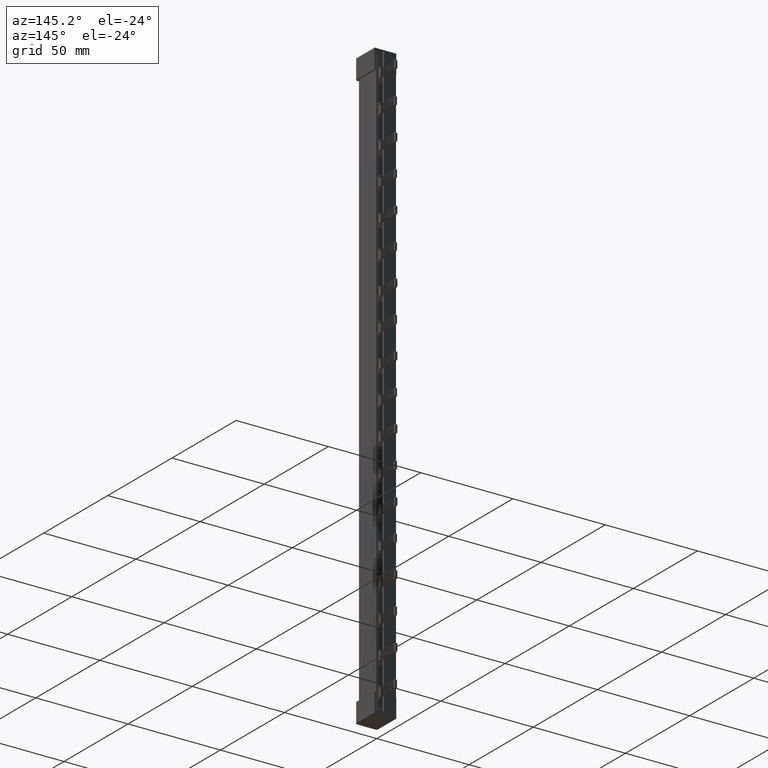
[diagram: clean part render]
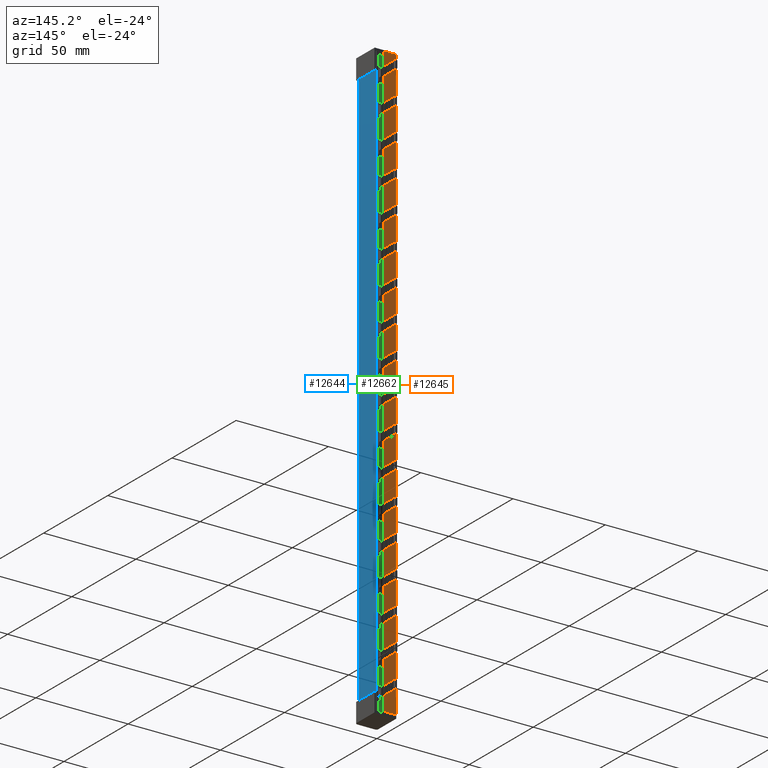
[diagram: same view with three faces highlighted in distinct colors, each labeled with its STEP entity id]
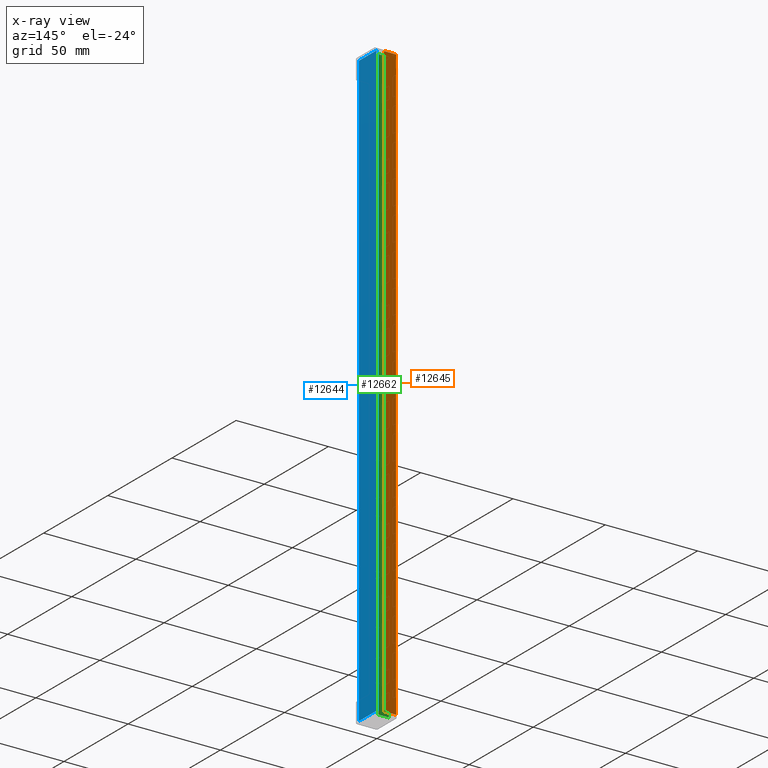
[diagram: x-ray of the same camera — body ghosted, the three highlighted faces saturated]
A machine part, auxiliary view with three faces highlighted in distinct colors.
The next image is the same camera in x-ray (body ghosted, the three faces saturated) — at least one of them is partly hidden behind the body in this view.
Their STEP definitions:

[orange] entity #12645 — the highlighted planar face has unit normal (0, -1, 0).
#1482 = DIRECTION ( 'NONE',  ( -0.0000000000000000000, 0.0000000000000000000, 1.000000000000000000 ) ) ;
#1532 = CARTESIAN_POINT ( 'NONE',  ( 6.499999999999950300, 14.99999999999998600, 220.2000000000000500 ) ) ;
#1574 = LINE ( 'NONE', #1532, #17274 ) ;
#1584 = CARTESIAN_POINT ( 'NONE',  ( 6.499999999999950300, 14.99999999999998600, -103.8000000000000300 ) ) ;
#1586 = DIRECTION ( 'NONE',  ( 1.000000000000000000, 0.0000000000000000000, 0.0000000000000000000 ) ) ;
#1642 = LINE ( 'NONE', #1584, #17357 ) ;
#1692 = LINE ( 'NONE', #1705, #17332 ) ;
#1705 = CARTESIAN_POINT ( 'NONE',  ( 6.499999999999950300, 14.99999999999998600, 217.7999999999999800 ) ) ;
#1855 = DIRECTION ( 'NONE',  ( -1.000000000000000000, -0.0000000000000000000, -0.0000000000000000000 ) ) ;
#2152 = CARTESIAN_POINT ( 'NONE',  ( 0.0000000000000000000, 14.99999999999998600, 220.2000000000000500 ) ) ;
#2196 = LINE ( 'NONE', #2152, #17347 ) ;
#2197 = DIRECTION ( 'NONE',  ( -0.0000000000000000000, -0.0000000000000000000, 1.000000000000000000 ) ) ;
#5546 = FACE_OUTER_BOUND ( 'NONE', #22801, .T. ) ;
#5547 = PLANE ( 'NONE',  #10280 ) ;
#5548 = DIRECTION ( 'NONE',  ( 0.0000000000000000000, -1.000000000000000000, 0.0000000000000000000 ) ) ;
#5567 = CARTESIAN_POINT ( 'NONE',  ( 6.499999999999950300, 14.99999999999998600, 220.2000000000000500 ) ) ;
#5587 = DIRECTION ( 'NONE',  ( 0.0000000000000000000, -0.0000000000000000000, -1.000000000000000000 ) ) ;
#10280 = AXIS2_PLACEMENT_3D ( 'NONE', #5567, #5548, #5587 ) ;
#12645 = ADVANCED_FACE ( 'NONE', ( #5546 ), #5547, .F. ) ;
#17274 = VECTOR ( 'NONE', #1482, 1000.000000000000000 ) ;
#17332 = VECTOR ( 'NONE', #1855, 1000.000000000000000 ) ;
#17347 = VECTOR ( 'NONE', #2197, 1000.000000000000000 ) ;
#17357 = VECTOR ( 'NONE', #1586, 1000.000000000000000 ) ;
#20589 = VERTEX_POINT ( 'NONE', #30425 ) ;
#20779 = VERTEX_POINT ( 'NONE', #30565 ) ;
#20969 = VERTEX_POINT ( 'NONE', #30794 ) ;
#21039 = VERTEX_POINT ( 'NONE', #30881 ) ;
#22801 = EDGE_LOOP ( 'NONE', ( #28537, #28570, #28534, #28539 ) ) ;
#27969 = EDGE_CURVE ( 'NONE', #20589, #20969, #1574, .T. ) ;
#27993 = EDGE_CURVE ( 'NONE', #20779, #20589, #1642, .T. ) ;
#28013 = EDGE_CURVE ( 'NONE', #20969, #21039, #1692, .T. ) ;
#28027 = EDGE_CURVE ( 'NONE', #20779, #21039, #2196, .T. ) ;
#28534 = ORIENTED_EDGE ( 'NONE', *, *, #28027, .T. ) ;
#28537 = ORIENTED_EDGE ( 'NONE', *, *, #27969, .F. ) ;
#28539 = ORIENTED_EDGE ( 'NONE', *, *, #28013, .F. ) ;
#28570 = ORIENTED_EDGE ( 'NONE', *, *, #27993, .F. ) ;
#30425 = CARTESIAN_POINT ( 'NONE',  ( 6.499999999999950300, 14.99999999999998600, -103.8000000000000000 ) ) ;
#30565 = CARTESIAN_POINT ( 'NONE',  ( 0.0000000000000000000, 14.99999999999998600, -103.8000000000000000 ) ) ;
#30794 = CARTESIAN_POINT ( 'NONE',  ( 6.499999999999950300, 14.99999999999998600, 217.7999999999998700 ) ) ;
#30881 = CARTESIAN_POINT ( 'NONE',  ( 0.0000000000000000000, 14.99999999999998600, 217.7999999999999800 ) ) ;

[blue] entity #12644 — the highlighted planar face has unit normal (1, -0, 0).
#569 = CARTESIAN_POINT ( 'NONE',  ( 9.599999999999830900, -8.104411239329145600E-015, -103.7999030758417800 ) ) ;
#1269 = CARTESIAN_POINT ( 'NONE',  ( 9.599999999999830900, 0.008467653318737108200, 217.7999999999933900 ) ) ;
#1283 = CARTESIAN_POINT ( 'NONE',  ( 9.599999999999829100, 0.01270166487820444300, 217.7999999999933900 ) ) ;
#1286 = CARTESIAN_POINT ( 'NONE',  ( 9.599999999999830900, -1.070649645329435600E-014, 217.7999030758345800 ) ) ;
#1289 = CARTESIAN_POINT ( 'NONE',  ( 9.599999999999830900, 0.004233506201914127500, 217.7999684908471900 ) ) ;
#1329 = CARTESIAN_POINT ( 'NONE',  ( 9.599999999999830900, 0.0000000000000000000, -103.8000000000066500 ) ) ;
#1342 = LINE ( 'NONE', #1329, #17242 ) ;
#1355 = DIRECTION ( 'NONE',  ( 0.0000000000000000000, 1.000000000000000000, 0.0000000000000000000 ) ) ;
#1422 = LINE ( 'NONE', #1568, #17277 ) ;
#1484 = CARTESIAN_POINT ( 'NONE',  ( 9.599999999999830900, -8.104411239329145600E-015, -103.7999030758417800 ) ) ;
#1486 = CARTESIAN_POINT ( 'NONE',  ( 9.599999999999830900, 0.008467653588718841400, -103.8000000000066600 ) ) ;
#1488 = CARTESIAN_POINT ( 'NONE',  ( 9.599999999999830900, 0.01270166528319181600, -103.8000000000066600 ) ) ;
#1512 = LINE ( 'NONE', #1559, #17278 ) ;
#1519 = CARTESIAN_POINT ( 'NONE',  ( 9.599999999999830900, 0.004233506336877318300, -103.7999684908585200 ) ) ;
#1552 = DIRECTION ( 'NONE',  ( -0.0000000000000000000, -1.000000000000000000, -0.0000000000000000000 ) ) ;
#1559 = CARTESIAN_POINT ( 'NONE',  ( 9.599999999999830900, 0.0000000000000000000, 217.7999999999933900 ) ) ;
#1568 = CARTESIAN_POINT ( 'NONE',  ( 9.599999999999830900, 13.49999999999998400, -103.8000000000000000 ) ) ;
#1576 = DIRECTION ( 'NONE',  ( -0.0000000000000000000, -0.0000000000000000000, 1.000000000000000000 ) ) ;
#1770 = CARTESIAN_POINT ( 'NONE',  ( 9.599999999999830900, 0.0000000000000000000, 220.2000000000000500 ) ) ;
#1796 = DIRECTION ( 'NONE',  ( -0.0000000000000000000, 0.0000000000000000000, 1.000000000000000000 ) ) ;
#1825 = LINE ( 'NONE', #1770, #17314 ) ;
#5570 = DIRECTION ( 'NONE',  ( 1.000000000000000000, -0.0000000000000000000, 0.0000000000000000000 ) ) ;
#5583 = DIRECTION ( 'NONE',  ( 0.0000000000000000000, 0.0000000000000000000, -1.000000000000000000 ) ) ;
#5586 = PLANE ( 'NONE',  #10316 ) ;
#5590 = CARTESIAN_POINT ( 'NONE',  ( 9.599999999999830900, 0.0000000000000000000, -103.8000000000000000 ) ) ;
#5594 = FACE_OUTER_BOUND ( 'NONE', #22805, .T. ) ;
#10316 = AXIS2_PLACEMENT_3D ( 'NONE', #5590, #5570, #5583 ) ;
#10412 = B_SPLINE_CURVE_WITH_KNOTS ( 'NONE', 3,
 ( #1484, #1519, #1486, #1488 ),
 .UNSPECIFIED., .F., .F.,
 ( 4, 4 ),
 ( 7.998046569171910700E-018, 1.270203508341827000E-005 ),
 .UNSPECIFIED. ) ;
#10416 = B_SPLINE_CURVE_WITH_KNOTS ( 'NONE', 3,
 ( #1283, #1269, #1289, #1286 ),
 .UNSPECIFIED., .F., .F.,
 ( 4, 4 ),
 ( 0.0000000000000000000, 1.270203467839071800E-005 ),
 .UNSPECIFIED. ) ;
#12644 = ADVANCED_FACE ( 'NONE', ( #5594 ), #5586, .T. ) ;
#14093 = ORIENTED_EDGE ( 'NONE', *, *, #27928, .T. ) ;
#14126 = ORIENTED_EDGE ( 'NONE', *, *, #27972, .T. ) ;
#14133 = ORIENTED_EDGE ( 'NONE', *, *, #27966, .T. ) ;
#14134 = ORIENTED_EDGE ( 'NONE', *, *, #27963, .T. ) ;
#14141 = ORIENTED_EDGE ( 'NONE', *, *, #28014, .F. ) ;
#14146 = ORIENTED_EDGE ( 'NONE', *, *, #27912, .T. ) ;
#17242 = VECTOR ( 'NONE', #1355, 1000.000000000000000 ) ;
#17277 = VECTOR ( 'NONE', #1576, 1000.000000000000000 ) ;
#17278 = VECTOR ( 'NONE', #1552, 1000.000000000000000 ) ;
#17314 = VECTOR ( 'NONE', #1796, 1000.000000000000000 ) ;
#18766 = VERTEX_POINT ( 'NONE', #30178 ) ;
#18784 = VERTEX_POINT ( 'NONE', #30205 ) ;
#18789 = VERTEX_POINT ( 'NONE', #30228 ) ;
#18809 = VERTEX_POINT ( 'NONE', #30284 ) ;
#21546 = VERTEX_POINT ( 'NONE', #29960 ) ;
#21573 = VERTEX_POINT ( 'NONE', #569 ) ;
#22805 = EDGE_LOOP ( 'NONE', ( #14134, #14126, #14146, #14141, #14133, #14093 ) ) ;
#27912 = EDGE_CURVE ( 'NONE', #18784, #21546, #10416, .T. ) ;
#27928 = EDGE_CURVE ( 'NONE', #18789, #18809, #1342, .T. ) ;
#27963 = EDGE_CURVE ( 'NONE', #18809, #18766, #1422, .T. ) ;
#27966 = EDGE_CURVE ( 'NONE', #21573, #18789, #10412, .T. ) ;
#27972 = EDGE_CURVE ( 'NONE', #18766, #18784, #1512, .T. ) ;
#28014 = EDGE_CURVE ( 'NONE', #21573, #21546, #1825, .T. ) ;
#29960 = CARTESIAN_POINT ( 'NONE',  ( 9.599999999999830900, -1.070649645329435600E-014, 217.7999030758345800 ) ) ;
#30178 = CARTESIAN_POINT ( 'NONE',  ( 9.599999999999830900, 13.49999999999998400, 217.7999999999934200 ) ) ;
#30205 = CARTESIAN_POINT ( 'NONE',  ( 9.599999999999829100, 0.01270166487820444300, 217.7999999999933900 ) ) ;
#30228 = CARTESIAN_POINT ( 'NONE',  ( 9.599999999999830900, 0.01270166528319181600, -103.8000000000066600 ) ) ;
#30284 = CARTESIAN_POINT ( 'NONE',  ( 9.599999999999830900, 13.49999999999998400, -103.8000000000066500 ) ) ;

[green] entity #12662 — the highlighted planar face has unit normal (0, 1, 0).
#1084 = LINE ( 'NONE', #1095, #17169 ) ;
#1094 = CARTESIAN_POINT ( 'NONE',  ( 2.750000000000529800, 10.70100000000004100, -103.8000000000045000 ) ) ;
#1095 = CARTESIAN_POINT ( 'NONE',  ( 2.750000000000530700, 10.70100000000004100, -103.8000000000045000 ) ) ;
#1096 = LINE ( 'NONE', #1120, #17128 ) ;
#1097 = LINE ( 'NONE', #1094, #17170 ) ;
#1098 = DIRECTION ( 'NONE',  ( -0.0000000000000000000, 0.0000000000000000000, -1.000000000000000000 ) ) ;
#1101 = DIRECTION ( 'NONE',  ( 0.0000000000000000000, -0.0000000000000000000, 1.000000000000000000 ) ) ;
#1105 = LINE ( 'NONE', #1113, #17171 ) ;
#1108 = DIRECTION ( 'NONE',  ( 0.0000000000000000000, -0.0000000000000000000, 1.000000000000000000 ) ) ;
#1113 = CARTESIAN_POINT ( 'NONE',  ( 2.750000000000530700, 10.70100000000004100, -103.8000000000045000 ) ) ;
#1114 = DIRECTION ( 'NONE',  ( 0.0000000000000000000, -0.0000000000000000000, 1.000000000000000000 ) ) ;
#1116 = LINE ( 'NONE', #1124, #17172 ) ;
#1118 = CARTESIAN_POINT ( 'NONE',  ( 1.749999999866585600, 10.70100000000004100, -103.8000000000045000 ) ) ;
#1120 = CARTESIAN_POINT ( 'NONE',  ( 2.750000000000529800, 10.70100000000004100, -103.8000000000045000 ) ) ;
#1124 = CARTESIAN_POINT ( 'NONE',  ( 2.750000000000529800, 10.70100000000004100, -103.8000000000045000 ) ) ;
#1126 = DIRECTION ( 'NONE',  ( 0.0000000000000000000, -0.0000000000000000000, 1.000000000000000000 ) ) ;
#1129 = DIRECTION ( 'NONE',  ( 0.0000000000000000000, -0.0000000000000000000, 1.000000000000000000 ) ) ;
#1130 = LINE ( 'NONE', #1118, #17144 ) ;
#1138 = LINE ( 'NONE', #1155, #17178 ) ;
#1139 = DIRECTION ( 'NONE',  ( -0.0000000000000000000, 0.0000000000000000000, -1.000000000000000000 ) ) ;
#1149 = LINE ( 'NONE', #1176, #17136 ) ;
#1155 = CARTESIAN_POINT ( 'NONE',  ( 1.749999999866584900, 10.70100000000004100, -103.8000000000045000 ) ) ;
#1164 = DIRECTION ( 'NONE',  ( -0.0000000000000000000, 0.0000000000000000000, -1.000000000000000000 ) ) ;
#1176 = CARTESIAN_POINT ( 'NONE',  ( 1.749999999866585600, 10.70100000000004100, -103.8000000000045000 ) ) ;
#1182 = LINE ( 'NONE', #1215, #17155 ) ;
#1186 = CARTESIAN_POINT ( 'NONE',  ( 1.749999999866585600, 10.70100000000004100, -103.8000000000045000 ) ) ;
#1189 = DIRECTION ( 'NONE',  ( 0.0000000000000000000, -0.0000000000000000000, 1.000000000000000000 ) ) ;
#1192 = LINE ( 'NONE', #1186, #17139 ) ;
#1194 = LINE ( 'NONE', #1221, #17153 ) ;
#1197 = DIRECTION ( 'NONE',  ( -0.0000000000000000000, 0.0000000000000000000, -1.000000000000000000 ) ) ;
#1198 = LINE ( 'NONE', #1210, #17204 ) ;
#1204 = DIRECTION ( 'NONE',  ( -0.0000000000000000000, 0.0000000000000000000, -1.000000000000000000 ) ) ;
#1210 = CARTESIAN_POINT ( 'NONE',  ( 2.750000000000530200, 10.70100000000004100, -103.8000000000045000 ) ) ;
#1215 = CARTESIAN_POINT ( 'NONE',  ( 1.750000000000584400, 10.70100000000004100, -103.8000000000045000 ) ) ;
#1219 = DIRECTION ( 'NONE',  ( -0.0000000000000000000, 0.0000000000000000000, -1.000000000000000000 ) ) ;
#1221 = CARTESIAN_POINT ( 'NONE',  ( 1.750000000000584400, 10.70100000000004100, -103.8000000000045000 ) ) ;
#1227 = CARTESIAN_POINT ( 'NONE',  ( 6.499999999999950300, 10.70100000000004100, -103.8000000000045000 ) ) ;
#1232 = LINE ( 'NONE', #1227, #17214 ) ;
#1234 = DIRECTION ( 'NONE',  ( -0.0000000000000000000, 0.0000000000000000000, -1.000000000000000000 ) ) ;
#1248 = DIRECTION ( 'NONE',  ( -0.0000000000000000000, 0.0000000000000000000, -1.000000000000000000 ) ) ;
#1256 = LINE ( 'NONE', #1268, #17187 ) ;
#1268 = CARTESIAN_POINT ( 'NONE',  ( 1.750000000000584400, 10.70100000000004100, -103.8000000000045000 ) ) ;
#1271 = DIRECTION ( 'NONE',  ( 0.0000000000000000000, -0.0000000000000000000, 1.000000000000000000 ) ) ;
#1272 = LINE ( 'NONE', #1298, #17235 ) ;
#1288 = LINE ( 'NONE', #1290, #17208 ) ;
#1290 = CARTESIAN_POINT ( 'NONE',  ( 2.750000000000529800, 10.70100000000004100, -103.8000000000045000 ) ) ;
#1291 = CARTESIAN_POINT ( 'NONE',  ( 1.750000000000584400, 10.70100000000004100, -103.8000000000045000 ) ) ;
#1298 = CARTESIAN_POINT ( 'NONE',  ( 6.499999999999950300, 10.70100000000004100, -103.8000000000044900 ) ) ;
#1311 = LINE ( 'NONE', #1291, #17209 ) ;
#1312 = DIRECTION ( 'NONE',  ( -0.0000000000000000000, 0.0000000000000000000, -1.000000000000000000 ) ) ;
#1315 = DIRECTION ( 'NONE',  ( -1.000000000000000000, -0.0000000000000000000, 0.0000000000000000000 ) ) ;
#1338 = LINE ( 'NONE', #1347, #17233 ) ;
#1347 = CARTESIAN_POINT ( 'NONE',  ( 2.750000000000529800, 10.70100000000004100, -103.8000000000045000 ) ) ;
#1348 = DIRECTION ( 'NONE',  ( 0.0000000000000000000, -0.0000000000000000000, 1.000000000000000000 ) ) ;
#1370 = LINE ( 'NONE', #1391, #17268 ) ;
#1371 = DIRECTION ( 'NONE',  ( -0.0000000000000000000, 0.0000000000000000000, -1.000000000000000000 ) ) ;
#1391 = CARTESIAN_POINT ( 'NONE',  ( 1.749999999866585600, 10.70100000000004100, -103.8000000000045000 ) ) ;
#1412 = LINE ( 'NONE', #1460, #17249 ) ;
#1437 = LINE ( 'NONE', #1451, #17272 ) ;
#1446 = DIRECTION ( 'NONE',  ( 0.0000000000000000000, -0.0000000000000000000, 1.000000000000000000 ) ) ;
#1451 = CARTESIAN_POINT ( 'NONE',  ( 0.9000000000005670100, 10.70100000000004100, 220.2000000000000500 ) ) ;
#1460 = CARTESIAN_POINT ( 'NONE',  ( 2.750000000000529800, 10.70100000000004100, -103.8000000000045000 ) ) ;
#1469 = DIRECTION ( 'NONE',  ( 0.0000000000000000000, 0.0000000000000000000, 1.000000000000000000 ) ) ;
#1706 = LINE ( 'NONE', #1728, #17307 ) ;
#1728 = CARTESIAN_POINT ( 'NONE',  ( 8.900000000277932700, 10.70100000000004300, 217.7999999999938700 ) ) ;
#1748 = DIRECTION ( 'NONE',  ( 1.000000000000000000, 0.0000000000000000000, -6.924738560343257600E-013 ) ) ;
#2099 = LINE ( 'NONE', #2371, #17487 ) ;
#2371 = CARTESIAN_POINT ( 'NONE',  ( 4.968462701010825100, 10.70100000124395100, 131.6861545322725200 ) ) ;
#2753 = DIRECTION ( 'NONE',  ( -1.000000000000000000, -0.0000000000000000000, -0.0000000000000000000 ) ) ;
#3115 = LINE ( 'NONE', #3118, #17426 ) ;
#3118 = CARTESIAN_POINT ( 'NONE',  ( 4.968462700935606200, 10.70100000000004300, 140.1638199248174300 ) ) ;
#3119 = DIRECTION ( 'NONE',  ( 1.000000000000000000, 0.0000000000000000000, 0.0000000000000000000 ) ) ;
#3140 = LINE ( 'NONE', #3175, #17543 ) ;
#3175 = CARTESIAN_POINT ( 'NONE',  ( 4.968462700935602600, 10.70099999896280000, -72.83618007471082500 ) ) ;
#3176 = DIRECTION ( 'NONE',  ( 1.000000000000000000, 0.0000000000000000000, 0.0000000000000000000 ) ) ;
#3201 = LINE ( 'NONE', #3229, #17546 ) ;
#3203 = DIRECTION ( 'NONE',  ( -1.000000000000000000, -0.0000000000000000000, -0.0000000000000000000 ) ) ;
#3229 = CARTESIAN_POINT ( 'NONE',  ( 4.968462701010825100, 10.70099999994113000, -81.31384546831157000 ) ) ;
#4474 = DIRECTION ( 'NONE',  ( 0.0000000000000000000, -0.0000000000000000000, 1.000000000000000000 ) ) ;
#4477 = PLANE ( 'NONE',  #10285 ) ;
#4483 = FACE_BOUND ( 'NONE', #22785, .T. ) ;
#4499 = CARTESIAN_POINT ( 'NONE',  ( 6.499999999999950300, 10.70100000000004100, -103.8000000000045000 ) ) ;
#4512 = DIRECTION ( 'NONE',  ( 0.0000000000000000000, 1.000000000000000000, 0.0000000000000000000 ) ) ;
#5610 = FACE_BOUND ( 'NONE', #22782, .T. ) ;
#5611 = FACE_BOUND ( 'NONE', #22818, .T. ) ;
#5613 = FACE_BOUND ( 'NONE', #22793, .T. ) ;
#5618 = FACE_BOUND ( 'NONE', #22821, .T. ) ;
#5619 = FACE_BOUND ( 'NONE', #22828, .T. ) ;
#5621 = FACE_BOUND ( 'NONE', #22774, .T. ) ;
#5634 = FACE_BOUND ( 'NONE', #22802, .T. ) ;
#5639 = FACE_OUTER_BOUND ( 'NONE', #22775, .T. ) ;
#5640 = FACE_BOUND ( 'NONE', #22770, .T. ) ;
#10285 = AXIS2_PLACEMENT_3D ( 'NONE', #4499, #4512, #4474 ) ;
#10616 = CARTESIAN_POINT ( 'NONE',  ( 4.968462701010825100, 10.70099999994113000, -10.31384546831159600 ) ) ;
#10622 = LINE ( 'NONE', #10638, #17486 ) ;
#10628 = DIRECTION ( 'NONE',  ( -1.000000000000000000, -0.0000000000000000000, -0.0000000000000000000 ) ) ;
#10638 = CARTESIAN_POINT ( 'NONE',  ( 4.968462701010825100, 10.70100000124396400, 60.68615453227258900 ) ) ;
#10639 = DIRECTION ( 'NONE',  ( -1.000000000000000000, -0.0000000000000000000, -0.0000000000000000000 ) ) ;
#10652 = LINE ( 'NONE', #10616, #17521 ) ;
#10698 = LINE ( 'NONE', #10758, #17488 ) ;
#10718 = DIRECTION ( 'NONE',  ( 1.000000000000000000, 0.0000000000000000000, 0.0000000000000000000 ) ) ;
#10758 = CARTESIAN_POINT ( 'NONE',  ( 4.968462700935602600, 10.70099999897339600, -1.836180074715656900 ) ) ;
#10821 = LINE ( 'NONE', #10857, #17494 ) ;
#10829 = DIRECTION ( 'NONE',  ( 1.000000000000000000, 0.0000000000000000000, 0.0000000000000000000 ) ) ;
#10857 = CARTESIAN_POINT ( 'NONE',  ( 4.968462700935602600, 10.70100000000004500, 69.16381992481740300 ) ) ;
#10900 = DIRECTION ( 'NONE',  ( -1.000000000000000000, -0.0000000000000000000, -0.0000000000000000000 ) ) ;
#10911 = CARTESIAN_POINT ( 'NONE',  ( 4.968462701010825100, 10.70100000124403100, 202.6861545322725500 ) ) ;
#10924 = LINE ( 'NONE', #10911, #17502 ) ;
#11010 = DIRECTION ( 'NONE',  ( -1.000000000000000000, -0.0000000000000000000, -0.0000000000000000000 ) ) ;
#11012 = CARTESIAN_POINT ( 'NONE',  ( 4.968462701010825100, 10.70099999994113000, -45.81384546831159800 ) ) ;
#11022 = LINE ( 'NONE', #11012, #17516 ) ;
#11031 = DIRECTION ( 'NONE',  ( -1.000000000000000000, -0.0000000000000000000, -0.0000000000000000000 ) ) ;
#11034 = LINE ( 'NONE', #11058, #17498 ) ;
#11058 = CARTESIAN_POINT ( 'NONE',  ( 4.968462701010822400, 10.70100000124393300, 96.18615453227255300 ) ) ;
#11090 = LINE ( 'NONE', #11137, #17529 ) ;
#11137 = CARTESIAN_POINT ( 'NONE',  ( 4.968462700935606200, 10.70100000000004000, 211.1638199248175200 ) ) ;
#11146 = DIRECTION ( 'NONE',  ( 1.000000000000000000, 0.0000000000000000000, 0.0000000000000000000 ) ) ;
#11194 = LINE ( 'NONE', #11206, #17490 ) ;
#11206 = CARTESIAN_POINT ( 'NONE',  ( 4.968462700935606200, 10.70100000000004000, 104.6638199248174300 ) ) ;
#11221 = DIRECTION ( 'NONE',  ( 1.000000000000000000, 0.0000000000000000000, 0.0000000000000000000 ) ) ;
#11238 = LINE ( 'NONE', #11254, #17509 ) ;
#11241 = DIRECTION ( 'NONE',  ( 1.000000000000000000, 0.0000000000000000000, 0.0000000000000000000 ) ) ;
#11254 = CARTESIAN_POINT ( 'NONE',  ( 4.968462700935604400, 10.70100000000003400, 175.6638199248174300 ) ) ;
#11355 = CARTESIAN_POINT ( 'NONE',  ( 4.968462701010825100, 10.70100000124397400, 167.1861545322725000 ) ) ;
#11357 = DIRECTION ( 'NONE',  ( -1.000000000000000000, -0.0000000000000000000, -0.0000000000000000000 ) ) ;
#11364 = LINE ( 'NONE', #11355, #17538 ) ;
#11445 = CARTESIAN_POINT ( 'NONE',  ( 4.968462700935602600, 10.70099999897340100, -37.33618007471565600 ) ) ;
#11448 = DIRECTION ( 'NONE',  ( 1.000000000000000000, 0.0000000000000000000, 0.0000000000000000000 ) ) ;
#11457 = LINE ( 'NONE', #11445, #17594 ) ;
#11497 = DIRECTION ( 'NONE',  ( 1.000000000000000000, 0.0000000000000000000, 0.0000000000000000000 ) ) ;
#11507 = CARTESIAN_POINT ( 'NONE',  ( 4.968462701010827800, 10.70099999994113400, 25.18615453168839800 ) ) ;
#11511 = DIRECTION ( 'NONE',  ( -1.000000000000000000, -0.0000000000000000000, -0.0000000000000000000 ) ) ;
#11520 = LINE ( 'NONE', #11525, #17561 ) ;
#11525 = CARTESIAN_POINT ( 'NONE',  ( 4.968462700935602600, 10.70099999897339600, 33.66381992528433600 ) ) ;
#11528 = LINE ( 'NONE', #11507, #17551 ) ;
#12662 = ADVANCED_FACE ( 'NONE', ( #5611, #5610, #5618, #5621, #5634, #5640, #5613, #5619, #4483, #5639 ), #4477, .T. ) ;
#14072 = ORIENTED_EDGE ( 'NONE', *, *, #28271, .F. ) ;
#14077 = ORIENTED_EDGE ( 'NONE', *, *, #27880, .T. ) ;
#14078 = ORIENTED_EDGE ( 'NONE', *, *, #28250, .F. ) ;
#14081 = ORIENTED_EDGE ( 'NONE', *, *, #27853, .T. ) ;
#14085 = ORIENTED_EDGE ( 'NONE', *, *, #27897, .T. ) ;
#14090 = ORIENTED_EDGE ( 'NONE', *, *, #27849, .T. ) ;
#14101 = ORIENTED_EDGE ( 'NONE', *, *, #27908, .T. ) ;
#14103 = ORIENTED_EDGE ( 'NONE', *, *, #27954, .T. ) ;
#14112 = ORIENTED_EDGE ( 'NONE', *, *, #27915, .T. ) ;
#14445 = ORIENTED_EDGE ( 'NONE', *, *, #28317, .F. ) ;
#14449 = ORIENTED_EDGE ( 'NONE', *, *, #28383, .F. ) ;
#14458 = ORIENTED_EDGE ( 'NONE', *, *, #27859, .T. ) ;
#14459 = ORIENTED_EDGE ( 'NONE', *, *, #27870, .T. ) ;
#14462 = ORIENTED_EDGE ( 'NONE', *, *, #28304, .F. ) ;
#14465 = ORIENTED_EDGE ( 'NONE', *, *, #28394, .F. ) ;
#14470 = ORIENTED_EDGE ( 'NONE', *, *, #27852, .T. ) ;
#14481 = ORIENTED_EDGE ( 'NONE', *, *, #27878, .T. ) ;
#14483 = ORIENTED_EDGE ( 'NONE', *, *, #27914, .T. ) ;
#14491 = ORIENTED_EDGE ( 'NONE', *, *, #27893, .T. ) ;
#14496 = ORIENTED_EDGE ( 'NONE', *, *, #28325, .F. ) ;
#14501 = ORIENTED_EDGE ( 'NONE', *, *, #28312, .F. ) ;
#14502 = ORIENTED_EDGE ( 'NONE', *, *, #28397, .F. ) ;
#14504 = ORIENTED_EDGE ( 'NONE', *, *, #27847, .T. ) ;
#14515 = ORIENTED_EDGE ( 'NONE', *, *, #28332, .F. ) ;
#14517 = ORIENTED_EDGE ( 'NONE', *, *, #28289, .F. ) ;
#14519 = ORIENTED_EDGE ( 'NONE', *, *, #27887, .T. ) ;
#14525 = ORIENTED_EDGE ( 'NONE', *, *, #27877, .T. ) ;
#14527 = ORIENTED_EDGE ( 'NONE', *, *, #28340, .F. ) ;
#14530 = ORIENTED_EDGE ( 'NONE', *, *, #27958, .T. ) ;
#14534 = ORIENTED_EDGE ( 'NONE', *, *, #28261, .F. ) ;
#14538 = ORIENTED_EDGE ( 'NONE', *, *, #27927, .T. ) ;
#14544 = ORIENTED_EDGE ( 'NONE', *, *, #27868, .T. ) ;
#14546 = ORIENTED_EDGE ( 'NONE', *, *, #28282, .F. ) ;
#14551 = ORIENTED_EDGE ( 'NONE', *, *, #27946, .T. ) ;
#14557 = ORIENTED_EDGE ( 'NONE', *, *, #27858, .T. ) ;
#14565 = ORIENTED_EDGE ( 'NONE', *, *, #28363, .F. ) ;
#14566 = ORIENTED_EDGE ( 'NONE', *, *, #28232, .F. ) ;
#14572 = ORIENTED_EDGE ( 'NONE', *, *, #28239, .F. ) ;
#14575 = ORIENTED_EDGE ( 'NONE', *, *, #28265, .F. ) ;
#14579 = ORIENTED_EDGE ( 'NONE', *, *, #27998, .T. ) ;
#17128 = VECTOR ( 'NONE', #1108, 1000.000000000000000 ) ;
#17136 = VECTOR ( 'NONE', #1164, 1000.000000000000000 ) ;
#17139 = VECTOR ( 'NONE', #1219, 1000.000000000000000 ) ;
#17144 = VECTOR ( 'NONE', #1098, 1000.000000000000000 ) ;
#17153 = VECTOR ( 'NONE', #1197, 1000.000000000000000 ) ;
#17155 = VECTOR ( 'NONE', #1204, 1000.000000000000000 ) ;
#17169 = VECTOR ( 'NONE', #1101, 1000.000000000000000 ) ;
#17170 = VECTOR ( 'NONE', #1129, 1000.000000000000000 ) ;
#17171 = VECTOR ( 'NONE', #1114, 1000.000000000000000 ) ;
#17172 = VECTOR ( 'NONE', #1126, 1000.000000000000000 ) ;
#17178 = VECTOR ( 'NONE', #1139, 1000.000000000000000 ) ;
#17187 = VECTOR ( 'NONE', #1248, 1000.000000000000000 ) ;
#17204 = VECTOR ( 'NONE', #1189, 1000.000000000000000 ) ;
#17208 = VECTOR ( 'NONE', #1271, 1000.000000000000000 ) ;
#17209 = VECTOR ( 'NONE', #1312, 1000.000000000000000 ) ;
#17214 = VECTOR ( 'NONE', #1234, 1000.000000000000000 ) ;
#17233 = VECTOR ( 'NONE', #1348, 1000.000000000000000 ) ;
#17235 = VECTOR ( 'NONE', #1315, 1000.000000000000000 ) ;
#17249 = VECTOR ( 'NONE', #1446, 1000.000000000000000 ) ;
#17268 = VECTOR ( 'NONE', #1371, 1000.000000000000000 ) ;
#17272 = VECTOR ( 'NONE', #1469, 1000.000000000000000 ) ;
#17307 = VECTOR ( 'NONE', #1748, 1000.000000000000000 ) ;
#17426 = VECTOR ( 'NONE', #3119, 1000.000000000000000 ) ;
#17486 = VECTOR ( 'NONE', #10639, 1000.000000000000000 ) ;
#17487 = VECTOR ( 'NONE', #2753, 1000.000000000000000 ) ;
#17488 = VECTOR ( 'NONE', #10718, 1000.000000000000000 ) ;
#17490 = VECTOR ( 'NONE', #11221, 1000.000000000000000 ) ;
#17494 = VECTOR ( 'NONE', #10829, 1000.000000000000000 ) ;
#17498 = VECTOR ( 'NONE', #11010, 1000.000000000000000 ) ;
#17502 = VECTOR ( 'NONE', #10900, 1000.000000000000000 ) ;
#17509 = VECTOR ( 'NONE', #11241, 1000.000000000000000 ) ;
#17516 = VECTOR ( 'NONE', #11031, 1000.000000000000000 ) ;
#17521 = VECTOR ( 'NONE', #10628, 1000.000000000000000 ) ;
#17529 = VECTOR ( 'NONE', #11146, 1000.000000000000000 ) ;
#17538 = VECTOR ( 'NONE', #11357, 1000.000000000000000 ) ;
#17543 = VECTOR ( 'NONE', #3176, 1000.000000000000000 ) ;
#17546 = VECTOR ( 'NONE', #3203, 1000.000000000000000 ) ;
#17551 = VECTOR ( 'NONE', #11511, 1000.000000000000000 ) ;
#17561 = VECTOR ( 'NONE', #11497, 1000.000000000000000 ) ;
#17594 = VECTOR ( 'NONE', #11448, 1000.000000000000000 ) ;
#18794 = VERTEX_POINT ( 'NONE', #30190 ) ;
#18799 = VERTEX_POINT ( 'NONE', #30218 ) ;
#18815 = VERTEX_POINT ( 'NONE', #30259 ) ;
#21147 = VERTEX_POINT ( 'NONE', #31121 ) ;
#21185 = VERTEX_POINT ( 'NONE', #31169 ) ;
#21189 = VERTEX_POINT ( 'NONE', #31141 ) ;
#21193 = VERTEX_POINT ( 'NONE', #31182 ) ;
#21196 = VERTEX_POINT ( 'NONE', #31142 ) ;
#21206 = VERTEX_POINT ( 'NONE', #31173 ) ;
#21208 = VERTEX_POINT ( 'NONE', #31151 ) ;
#21218 = VERTEX_POINT ( 'NONE', #31157 ) ;
#21219 = VERTEX_POINT ( 'NONE', #31186 ) ;
#21221 = VERTEX_POINT ( 'NONE', #31136 ) ;
#21224 = VERTEX_POINT ( 'NONE', #31158 ) ;
#21226 = VERTEX_POINT ( 'NONE', #31140 ) ;
#21233 = VERTEX_POINT ( 'NONE', #31149 ) ;
#21239 = VERTEX_POINT ( 'NONE', #31146 ) ;
#21240 = VERTEX_POINT ( 'NONE', #31195 ) ;
#21243 = VERTEX_POINT ( 'NONE', #31197 ) ;
#21249 = VERTEX_POINT ( 'NONE', #31258 ) ;
#21255 = VERTEX_POINT ( 'NONE', #31240 ) ;
#21256 = VERTEX_POINT ( 'NONE', #31235 ) ;
#21257 = VERTEX_POINT ( 'NONE', #31264 ) ;
#21261 = VERTEX_POINT ( 'NONE', #31220 ) ;
#21264 = VERTEX_POINT ( 'NONE', #31251 ) ;
#21265 = VERTEX_POINT ( 'NONE', #31259 ) ;
#21269 = VERTEX_POINT ( 'NONE', #31237 ) ;
#21272 = VERTEX_POINT ( 'NONE', #31260 ) ;
#21284 = VERTEX_POINT ( 'NONE', #31265 ) ;
#21295 = VERTEX_POINT ( 'NONE', #31215 ) ;
#21296 = VERTEX_POINT ( 'NONE', #31208 ) ;
#21316 = VERTEX_POINT ( 'NONE', #31296 ) ;
#21321 = VERTEX_POINT ( 'NONE', #31303 ) ;
#21322 = VERTEX_POINT ( 'NONE', #31308 ) ;
#21326 = VERTEX_POINT ( 'NONE', #31304 ) ;
#21329 = VERTEX_POINT ( 'NONE', #31293 ) ;
#21330 = VERTEX_POINT ( 'NONE', #31284 ) ;
#21331 = VERTEX_POINT ( 'NONE', #31285 ) ;
#21334 = VERTEX_POINT ( 'NONE', #31280 ) ;
#21463 = VERTEX_POINT ( 'NONE', #31438 ) ;
#22770 = EDGE_LOOP ( 'NONE', ( #14557, #14517, #14544, #14072 ) ) ;
#22774 = EDGE_LOOP ( 'NONE', ( #14470, #14515, #14481, #14501 ) ) ;
#22775 = EDGE_LOOP ( 'NONE', ( #14103, #14579, #14085, #14101 ) ) ;
#22782 = EDGE_LOOP ( 'NONE', ( #14491, #14445, #14504, #14449 ) ) ;
#22785 = EDGE_LOOP ( 'NONE', ( #14112, #14575, #14530, #14546 ) ) ;
#22793 = EDGE_LOOP ( 'NONE', ( #14519, #14566, #14081, #14534 ) ) ;
#22802 = EDGE_LOOP ( 'NONE', ( #14483, #14527, #14459, #14565 ) ) ;
#22818 = EDGE_LOOP ( 'NONE', ( #14525, #14502, #14458, #14465 ) ) ;
#22821 = EDGE_LOOP ( 'NONE', ( #14538, #14496, #14551, #14462 ) ) ;
#22828 = EDGE_LOOP ( 'NONE', ( #14572, #14077, #14078, #14090 ) ) ;
#27847 = EDGE_CURVE ( 'NONE', #21284, #21321, #1084, .T. ) ;
#27849 = EDGE_CURVE ( 'NONE', #21206, #21193, #1097, .T. ) ;
#27852 = EDGE_CURVE ( 'NONE', #21257, #21334, #1096, .T. ) ;
#27853 = EDGE_CURVE ( 'NONE', #21249, #21221, #1130, .T. ) ;
#27858 = EDGE_CURVE ( 'NONE', #21147, #21218, #1105, .T. ) ;
#27859 = EDGE_CURVE ( 'NONE', #21330, #21272, #1116, .T. ) ;
#27868 = EDGE_CURVE ( 'NONE', #21233, #21239, #1138, .T. ) ;
#27870 = EDGE_CURVE ( 'NONE', #21255, #21265, #1149, .T. ) ;
#27877 = EDGE_CURVE ( 'NONE', #21226, #21322, #1194, .T. ) ;
#27878 = EDGE_CURVE ( 'NONE', #21316, #21264, #1192, .T. ) ;
#27880 = EDGE_CURVE ( 'NONE', #21224, #21196, #1182, .T. ) ;
#27887 = EDGE_CURVE ( 'NONE', #21189, #21256, #1198, .T. ) ;
#27893 = EDGE_CURVE ( 'NONE', #21329, #21331, #1256, .T. ) ;
#27897 = EDGE_CURVE ( 'NONE', #18799, #21463, #1232, .T. ) ;
#27908 = EDGE_CURVE ( 'NONE', #21463, #18794, #1272, .T. ) ;
#27914 = EDGE_CURVE ( 'NONE', #21219, #21240, #1288, .T. ) ;
#27915 = EDGE_CURVE ( 'NONE', #21243, #21269, #1311, .T. ) ;
#27927 = EDGE_CURVE ( 'NONE', #21295, #21296, #1338, .T. ) ;
#27946 = EDGE_CURVE ( 'NONE', #21261, #21326, #1370, .T. ) ;
#27954 = EDGE_CURVE ( 'NONE', #18794, #18815, #1437, .T. ) ;
#27958 = EDGE_CURVE ( 'NONE', #21185, #21208, #1412, .T. ) ;
#27998 = EDGE_CURVE ( 'NONE', #18815, #18799, #1706, .T. ) ;
#28232 = EDGE_CURVE ( 'NONE', #21249, #21256, #3115, .T. ) ;
#28239 = EDGE_CURVE ( 'NONE', #21224, #21193, #3140, .T. ) ;
#28250 = EDGE_CURVE ( 'NONE', #21206, #21196, #3201, .T. ) ;
#28261 = EDGE_CURVE ( 'NONE', #21189, #21221, #2099, .T. ) ;
#28265 = EDGE_CURVE ( 'NONE', #21185, #21269, #10652, .T. ) ;
#28271 = EDGE_CURVE ( 'NONE', #21147, #21239, #10622, .T. ) ;
#28282 = EDGE_CURVE ( 'NONE', #21243, #21208, #10698, .T. ) ;
#28289 = EDGE_CURVE ( 'NONE', #21233, #21218, #10821, .T. ) ;
#28304 = EDGE_CURVE ( 'NONE', #21295, #21326, #10924, .T. ) ;
#28312 = EDGE_CURVE ( 'NONE', #21257, #21264, #11034, .T. ) ;
#28317 = EDGE_CURVE ( 'NONE', #21284, #21331, #11022, .T. ) ;
#28325 = EDGE_CURVE ( 'NONE', #21261, #21296, #11090, .T. ) ;
#28332 = EDGE_CURVE ( 'NONE', #21316, #21334, #11194, .T. ) ;
#28340 = EDGE_CURVE ( 'NONE', #21255, #21240, #11238, .T. ) ;
#28363 = EDGE_CURVE ( 'NONE', #21219, #21265, #11364, .T. ) ;
#28383 = EDGE_CURVE ( 'NONE', #21329, #21321, #11457, .T. ) ;
#28394 = EDGE_CURVE ( 'NONE', #21226, #21272, #11520, .T. ) ;
#28397 = EDGE_CURVE ( 'NONE', #21330, #21322, #11528, .T. ) ;
#30190 = CARTESIAN_POINT ( 'NONE',  ( 0.9000000000005670100, 10.70100000000004100, -103.8000000000015300 ) ) ;
#30218 = CARTESIAN_POINT ( 'NONE',  ( 6.499999999999950300, 10.70100000000004300, 217.7999999999960000 ) ) ;
#30259 = CARTESIAN_POINT ( 'NONE',  ( 0.9000000000005670100, 10.70100000000004300, 217.7999999999995600 ) ) ;
#31121 = CARTESIAN_POINT ( 'NONE',  ( 2.750000000000530700, 10.70100000066750400, 60.68615453215185300 ) ) ;
#31136 = CARTESIAN_POINT ( 'NONE',  ( 1.749999999933584900, 10.70100000062199700, 131.6861545324726100 ) ) ;
#31140 = CARTESIAN_POINT ( 'NONE',  ( 1.750000000000584400, 10.70099999938847400, 33.66381992521228700 ) ) ;
#31141 = CARTESIAN_POINT ( 'NONE',  ( 2.750000000000531100, 10.70100000066750400, 131.6861545321518200 ) ) ;
#31142 = CARTESIAN_POINT ( 'NONE',  ( 1.750000000000584200, 10.70099999997058600, -81.31384546836170600 ) ) ;
#31146 = CARTESIAN_POINT ( 'NONE',  ( 1.749999999933584500, 10.70100000062200300, 60.68615453247267100 ) ) ;
#31149 = CARTESIAN_POINT ( 'NONE',  ( 1.749999999933584700, 10.70100000002873700, 69.16381992480435800 ) ) ;
#31151 = CARTESIAN_POINT ( 'NONE',  ( 2.750000000000529800, 10.70099999948671900, -1.836180074774020000 ) ) ;
#31157 = CARTESIAN_POINT ( 'NONE',  ( 2.750000000000530200, 10.70100000000004300, 69.16381992458583700 ) ) ;
#31158 = CARTESIAN_POINT ( 'NONE',  ( 1.750000000000584200, 10.70099999938218400, -72.83618007478362700 ) ) ;
#31169 = CARTESIAN_POINT ( 'NONE',  ( 2.750000000000530700, 10.70099999994128500, -10.31384546831822400 ) ) ;
#31173 = CARTESIAN_POINT ( 'NONE',  ( 2.750000000000530700, 10.70099999994128500, -81.31384546831822000 ) ) ;
#31182 = CARTESIAN_POINT ( 'NONE',  ( 2.750000000000529800, 10.70099999948142000, -72.83618007476980000 ) ) ;
#31186 = CARTESIAN_POINT ( 'NONE',  ( 2.750000000000530700, 10.70100000066751600, 167.1861545321517900 ) ) ;
#31195 = CARTESIAN_POINT ( 'NONE',  ( 2.750000000000529800, 10.70100000000003800, 175.6638199245858800 ) ) ;
#31197 = CARTESIAN_POINT ( 'NONE',  ( 1.750000000000584000, 10.70099999938847000, -1.836180074787702600 ) ) ;
#31208 = CARTESIAN_POINT ( 'NONE',  ( 2.750000000000529800, 10.70100000000004000, 211.1638199245859700 ) ) ;
#31215 = CARTESIAN_POINT ( 'NONE',  ( 2.750000000000529800, 10.70100000066754700, 202.6861545321518200 ) ) ;
#31220 = CARTESIAN_POINT ( 'NONE',  ( 1.749999999933585100, 10.70100000002873700, 211.1638199248045000 ) ) ;
#31235 = CARTESIAN_POINT ( 'NONE',  ( 2.750000000000530700, 10.70100000000004300, 140.1638199245858800 ) ) ;
#31237 = CARTESIAN_POINT ( 'NONE',  ( 1.750000000000584200, 10.70099999997058600, -10.31384546836171800 ) ) ;
#31240 = CARTESIAN_POINT ( 'NONE',  ( 1.749999999933585300, 10.70100000002872400, 175.6638199248043900 ) ) ;
#31251 = CARTESIAN_POINT ( 'NONE',  ( 1.749999999933584900, 10.70100000062198700, 96.18615453247265600 ) ) ;
#31258 = CARTESIAN_POINT ( 'NONE',  ( 1.749999999933584900, 10.70100000002873100, 140.1638199248044100 ) ) ;
#31259 = CARTESIAN_POINT ( 'NONE',  ( 1.749999999933584900, 10.70100000062200800, 167.1861545324725900 ) ) ;
#31260 = CARTESIAN_POINT ( 'NONE',  ( 2.750000000000529800, 10.70099999948671900, 33.66381992522596500 ) ) ;
#31264 = CARTESIAN_POINT ( 'NONE',  ( 2.750000000000530700, 10.70100000066748600, 96.18615453215184600 ) ) ;
#31265 = CARTESIAN_POINT ( 'NONE',  ( 2.750000000000530700, 10.70099999994128300, -45.81384546831822000 ) ) ;
#31280 = CARTESIAN_POINT ( 'NONE',  ( 2.750000000000529800, 10.70100000000004000, 104.6638199245858700 ) ) ;
#31284 = CARTESIAN_POINT ( 'NONE',  ( 2.750000000000529800, 10.70099999994128500, 25.18615453168176500 ) ) ;
#31285 = CARTESIAN_POINT ( 'NONE',  ( 1.750000000000584200, 10.70099999997058600, -45.81384546836172000 ) ) ;
#31293 = CARTESIAN_POINT ( 'NONE',  ( 1.750000000000584200, 10.70099999938847400, -37.33618007478769800 ) ) ;
#31296 = CARTESIAN_POINT ( 'NONE',  ( 1.749999999933585300, 10.70100000002873000, 104.6638199248044000 ) ) ;
#31303 = CARTESIAN_POINT ( 'NONE',  ( 2.750000000000530200, 10.70099999948672200, -37.33618007477402000 ) ) ;
#31304 = CARTESIAN_POINT ( 'NONE',  ( 1.749999999933584900, 10.70100000062203600, 202.6861545324726700 ) ) ;
#31308 = CARTESIAN_POINT ( 'NONE',  ( 1.750000000000584200, 10.70099999997058800, 25.18615453163827300 ) ) ;
#31438 = CARTESIAN_POINT ( 'NONE',  ( 6.499999999999950300, 10.70100000000004300, -103.8000000000044900 ) ) ;